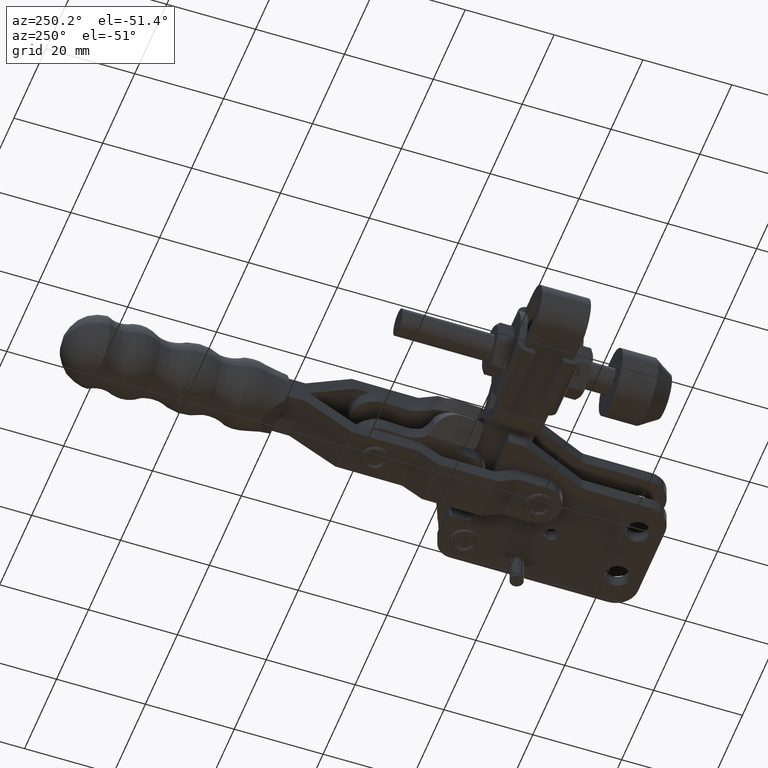
[diagram: clean part render]
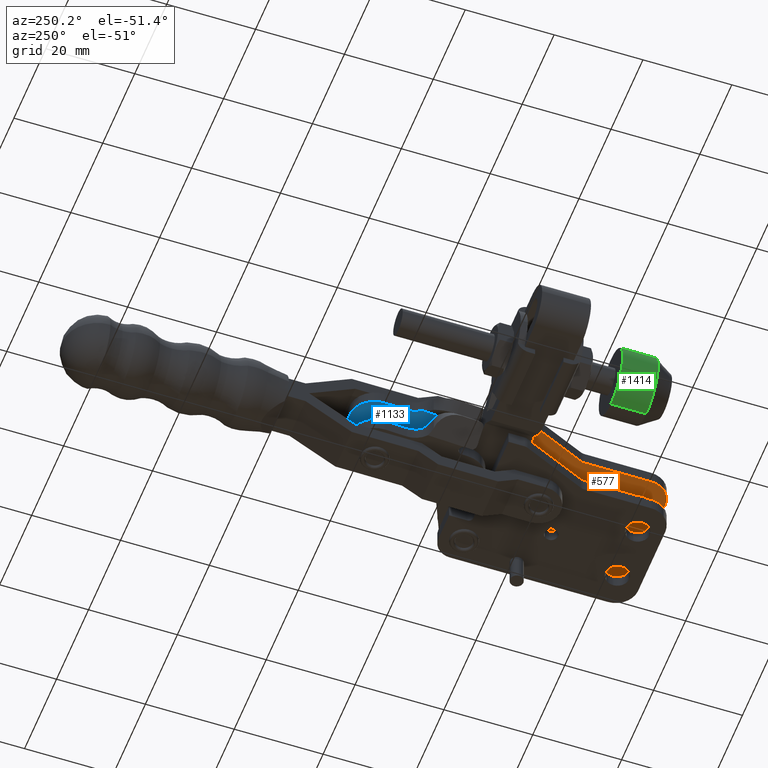
[diagram: same view with three faces highlighted in distinct colors, each labeled with its STEP entity id]
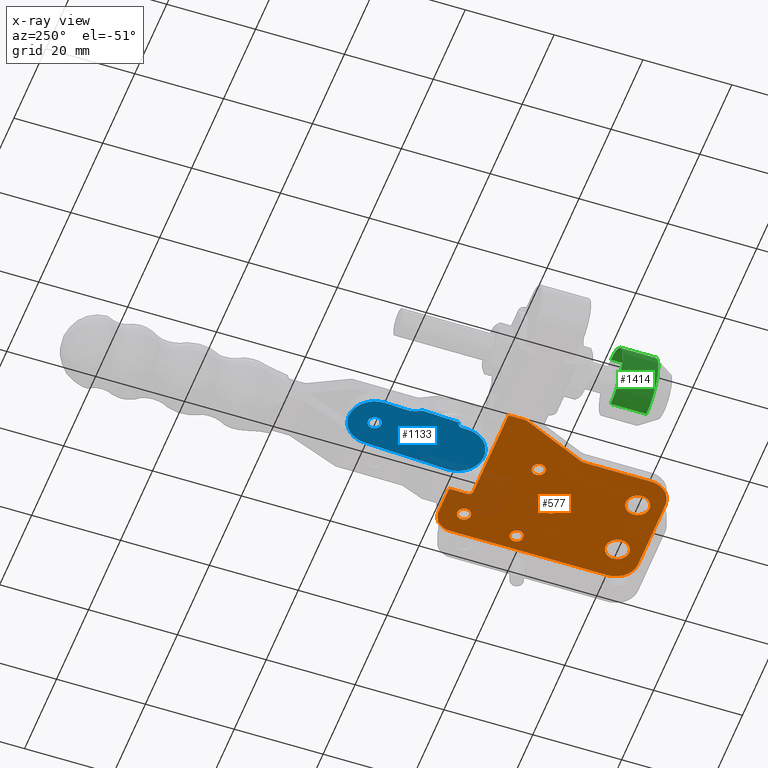
[diagram: x-ray of the same camera — body ghosted, the three highlighted faces saturated]
A machine part, auxiliary view with three faces highlighted in distinct colors.
The next image is the same camera in x-ray (body ghosted, the three faces saturated) — at least one of them is partly hidden behind the body in this view.
Their STEP definitions:

[orange] entity #577 — the highlighted planar face has unit normal (0, 0, 1).
#84 = EDGE_CURVE ( 'NONE', #4448, #1134, #5403, .T. ) ;
#185 = CARTESIAN_POINT ( 'NONE',  ( 35.48124762107060100, 29.39626203524211300, -22.68006977252661800 ) ) ;
#224 = VECTOR ( 'NONE', #10061, 1000.000000000000000 ) ;
#362 = CARTESIAN_POINT ( 'NONE',  ( 25.18104760106653500, 18.39626203524208100, -22.68006977252661800 ) ) ;
#436 = DIRECTION ( 'NONE',  ( 0.0000000000000000000, 0.0000000000000000000, 1.000000000000000000 ) ) ;
#500 = AXIS2_PLACEMENT_3D ( 'NONE', #362, #7080, #2506 ) ;
#577 = ADVANCED_FACE ( 'NONE', ( #3051, #9739, #7444, #1011, #748, #5103, #2760 ), #6734, .F. ) ;
#663 = DIRECTION ( 'NONE',  ( 1.000000000000000000, 0.0000000000000000000, 0.0000000000000000000 ) ) ;
#727 = CARTESIAN_POINT ( 'NONE',  ( 41.88104760106653400, 29.19626203524208200, -22.68006977252661800 ) ) ;
#748 = FACE_BOUND ( 'NONE', #8327, .T. ) ;
#774 = CARTESIAN_POINT ( 'NONE',  ( 34.08104760106652300, 12.39626203524207800, -22.68006977252661800 ) ) ;
#832 = DIRECTION ( 'NONE',  ( 0.0000000000000000000, 0.0000000000000000000, 1.000000000000000000 ) ) ;
#837 = CIRCLE ( 'NONE', #500, 1.500000000000001300 ) ;
#906 = DIRECTION ( 'NONE',  ( 0.0000000000000000000, -0.0000000000000000000, -1.000000000000000000 ) ) ;
#941 = AXIS2_PLACEMENT_3D ( 'NONE', #1461, #7289, #10169 ) ;
#948 = LINE ( 'NONE', #2765, #5034 ) ;
#987 = EDGE_CURVE ( 'NONE', #1105, #7743, #7834, .T. ) ;
#1011 = FACE_BOUND ( 'NONE', #7187, .T. ) ;
#1025 = VERTEX_POINT ( 'NONE', #3247 ) ;
#1095 = EDGE_CURVE ( 'NONE', #7221, #6888, #3857, .T. ) ;
#1105 = VERTEX_POINT ( 'NONE', #1876 ) ;
#1134 = VERTEX_POINT ( 'NONE', #3407 ) ;
#1148 = AXIS2_PLACEMENT_3D ( 'NONE', #4178, #7685, #2143 ) ;
#1176 = CARTESIAN_POINT ( 'NONE',  ( 43.18104760106650300, 34.49626203524209700, -22.68006977252661800 ) ) ;
#1235 = VERTEX_POINT ( 'NONE', #1384 ) ;
#1384 = CARTESIAN_POINT ( 'NONE',  ( 47.18104760106652400, -5.103737964757906200, -22.68006977252661800 ) ) ;
#1386 = CARTESIAN_POINT ( 'NONE',  ( 43.68104760106652400, 16.69626203524207900, -22.68006977252661800 ) ) ;
#1446 = ORIENTED_EDGE ( 'NONE', *, *, #2136, .F. ) ;
#1461 = CARTESIAN_POINT ( 'NONE',  ( 15.48104760106652100, 25.82142790405146100, -22.68006977252661800 ) ) ;
#1672 = VECTOR ( 'NONE', #6417, 1000.000000000000100 ) ;
#1699 = EDGE_CURVE ( 'NONE', #3823, #8761, #9423, .T. ) ;
#1716 = CARTESIAN_POINT ( 'NONE',  ( 13.65395668578131500, 25.00795461789987700, -22.68006977252661800 ) ) ;
#1731 = VERTEX_POINT ( 'NONE', #8072 ) ;
#1824 = CARTESIAN_POINT ( 'NONE',  ( 32.58104760106652300, 12.39626203524207800, -22.68006977252661800 ) ) ;
#1876 = CARTESIAN_POINT ( 'NONE',  ( 26.68104760106653500, 18.39626203524208100, -22.68006977252661800 ) ) ;
#1922 = ORIENTED_EDGE ( 'NONE', *, *, #3215, .T. ) ;
#2021 = DIRECTION ( 'NONE',  ( -1.000000000000000000, 0.0000000000000000000, 0.0000000000000000000 ) ) ;
#2048 = ORIENTED_EDGE ( 'NONE', *, *, #7522, .T. ) ;
#2094 = VECTOR ( 'NONE', #2647, 1000.000000000000000 ) ;
#2136 = EDGE_CURVE ( 'NONE', #10880, #2958, #2564, .T. ) ;
#2143 = DIRECTION ( 'NONE',  ( 1.000000000000000000, 0.0000000000000000000, 0.0000000000000000000 ) ) ;
#2166 = DIRECTION ( 'NONE',  ( 0.0000000000000000000, 0.0000000000000000000, 1.000000000000000000 ) ) ;
#2173 = VERTEX_POINT ( 'NONE', #10477 ) ;
#2175 = AXIS2_PLACEMENT_3D ( 'NONE', #5553, #6753, #2811 ) ;
#2280 = ORIENTED_EDGE ( 'NONE', *, *, #8573, .T. ) ;
#2305 = AXIS2_PLACEMENT_3D ( 'NONE', #1386, #2698, #7005 ) ;
#2306 = ORIENTED_EDGE ( 'NONE', *, *, #3861, .F. ) ;
#2311 = DIRECTION ( 'NONE',  ( 0.0000000000000000000, 0.0000000000000000000, 1.000000000000000000 ) ) ;
#2347 = CIRCLE ( 'NONE', #941, 1.999999999999988000 ) ;
#2382 = CARTESIAN_POINT ( 'NONE',  ( 25.18104760106643500, -10.10373796475791200, -22.68006977252661800 ) ) ;
#2422 = CIRCLE ( 'NONE', #2939, 2.649999999999999500 ) ;
#2445 = EDGE_CURVE ( 'NONE', #4194, #3420, #9802, .T. ) ;
#2478 = EDGE_CURVE ( 'NONE', #2173, #1235, #5711, .T. ) ;
#2506 = DIRECTION ( 'NONE',  ( 1.000000000000000000, 0.0000000000000000000, 0.0000000000000000000 ) ) ;
#2512 = DIRECTION ( 'NONE',  ( 6.688605832388951300E-015, -1.000000000000000000, 0.0000000000000000000 ) ) ;
#2523 = DIRECTION ( 'NONE',  ( 0.0000000000000000000, 0.0000000000000000000, 1.000000000000000000 ) ) ;
#2564 = LINE ( 'NONE', #10171, #4906 ) ;
#2567 = ORIENTED_EDGE ( 'NONE', *, *, #2478, .F. ) ;
#2621 = CIRCLE ( 'NONE', #7250, 2.649999999999999500 ) ;
#2647 = DIRECTION ( 'NONE',  ( -1.000000000000000000, -2.569179678030276000E-015, 0.0000000000000000000 ) ) ;
#2698 = DIRECTION ( 'NONE',  ( 0.0000000000000000000, 0.0000000000000000000, 1.000000000000000000 ) ) ;
#2702 = CARTESIAN_POINT ( 'NONE',  ( 36.48024752105054300, 30.49626203524207600, -22.68006977252661800 ) ) ;
#2760 = FACE_BOUND ( 'NONE', #10382, .T. ) ;
#2765 = CARTESIAN_POINT ( 'NONE',  ( 42.18104760106653100, -10.10373796475791200, -22.68006977252661800 ) ) ;
#2791 = EDGE_CURVE ( 'NONE', #1025, #9791, #5541, .T. ) ;
#2811 = DIRECTION ( 'NONE',  ( 1.000000000000000000, 0.0000000000000000000, 0.0000000000000000000 ) ) ;
#2826 = DIRECTION ( 'NONE',  ( -1.000000000000000000, 0.0000000000000000000, 0.0000000000000000000 ) ) ;
#2835 = VERTEX_POINT ( 'NONE', #1716 ) ;
#2844 = DIRECTION ( 'NONE',  ( 1.000000000000000000, 0.0000000000000000000, 0.0000000000000000000 ) ) ;
#2939 = AXIS2_PLACEMENT_3D ( 'NONE', #6056, #2523, #2844 ) ;
#2958 = VERTEX_POINT ( 'NONE', #3791 ) ;
#2961 = EDGE_CURVE ( 'NONE', #1731, #5000, #9479, .T. ) ;
#3019 = DIRECTION ( 'NONE',  ( -1.000000000000000000, 0.0000000000000000000, 0.0000000000000000000 ) ) ;
#3037 = LINE ( 'NONE', #3467, #7422 ) ;
#3051 = FACE_BOUND ( 'NONE', #8195, .T. ) ;
#3080 = DIRECTION ( 'NONE',  ( 1.000000000000000000, 0.0000000000000000000, 0.0000000000000000000 ) ) ;
#3136 = ORIENTED_EDGE ( 'NONE', *, *, #2445, .T. ) ;
#3172 = ORIENTED_EDGE ( 'NONE', *, *, #987, .T. ) ;
#3191 = DIRECTION ( 'NONE',  ( 1.000000000000000000, 0.0000000000000000000, 0.0000000000000000000 ) ) ;
#3215 = EDGE_CURVE ( 'NONE', #8761, #3823, #6466, .T. ) ;
#3239 = CARTESIAN_POINT ( 'NONE',  ( 25.18104760106653500, 18.39626203524208100, -22.68006977252661800 ) ) ;
#3247 = CARTESIAN_POINT ( 'NONE',  ( 37.23104760106652800, -4.603737964757912400, -22.68006977252661800 ) ) ;
#3248 = AXIS2_PLACEMENT_3D ( 'NONE', #774, #2166, #8735 ) ;
#3386 = ORIENTED_EDGE ( 'NONE', *, *, #3675, .F. ) ;
#3403 = CARTESIAN_POINT ( 'NONE',  ( 20.00813851635163600, 10.73622855836491800, -22.68006977252661800 ) ) ;
#3405 = CARTESIAN_POINT ( 'NONE',  ( 39.88104760106652700, -4.603737964757912400, -22.68006977252661800 ) ) ;
#3407 = CARTESIAN_POINT ( 'NONE',  ( 40.38104760106653400, 29.19626203524208200, -22.68006977252661800 ) ) ;
#3420 = VERTEX_POINT ( 'NONE', #1824 ) ;
#3429 = ORIENTED_EDGE ( 'NONE', *, *, #8444, .F. ) ;
#3467 = CARTESIAN_POINT ( 'NONE',  ( 47.18104760106653100, 30.49626203524204700, -22.68006977252661800 ) ) ;
#3675 = EDGE_CURVE ( 'NONE', #5302, #10416, #10575, .T. ) ;
#3688 = DIRECTION ( 'NONE',  ( 1.000000000000000000, 0.0000000000000000000, 0.0000000000000000000 ) ) ;
#3744 = CARTESIAN_POINT ( 'NONE',  ( 13.48104760106651900, 29.39626203524212000, -22.68006977252662200 ) ) ;
#3766 = AXIS2_PLACEMENT_3D ( 'NONE', #8842, #8559, #9345 ) ;
#3779 = DIRECTION ( 'NONE',  ( 9.746977530644687300E-017, 1.000000000000000000, 0.0000000000000000000 ) ) ;
#3791 = CARTESIAN_POINT ( 'NONE',  ( 13.48104760106653400, 25.82142790405147200, -22.68006977252661800 ) ) ;
#3823 = VERTEX_POINT ( 'NONE', #10435 ) ;
#3838 = DIRECTION ( 'NONE',  ( 0.0000000000000000000, 0.0000000000000000000, 1.000000000000000000 ) ) ;
#3857 = CIRCLE ( 'NONE', #3766, 0.9999999999999662500 ) ;
#3861 = EDGE_CURVE ( 'NONE', #5000, #10209, #5237, .T. ) ;
#3905 = DIRECTION ( 'NONE',  ( 0.0000000000000000000, 0.0000000000000000000, -1.000000000000000000 ) ) ;
#3953 = DIRECTION ( 'NONE',  ( 1.000000000000000000, 1.020234244308859900E-016, 0.0000000000000000000 ) ) ;
#3954 = ORIENTED_EDGE ( 'NONE', *, *, #1699, .T. ) ;
#3971 = EDGE_CURVE ( 'NONE', #8053, #5302, #7133, .T. ) ;
#4017 = LINE ( 'NONE', #4678, #1672 ) ;
#4178 = CARTESIAN_POINT ( 'NONE',  ( 43.18104760106650300, 30.49626203524205400, -22.68006977252661800 ) ) ;
#4192 = EDGE_CURVE ( 'NONE', #2958, #2835, #2347, .T. ) ;
#4194 = VERTEX_POINT ( 'NONE', #5081 ) ;
#4316 = ORIENTED_EDGE ( 'NONE', *, *, #6487, .F. ) ;
#4448 = VERTEX_POINT ( 'NONE', #10862 ) ;
#4464 = ORIENTED_EDGE ( 'NONE', *, *, #8225, .F. ) ;
#4602 = DIRECTION ( 'NONE',  ( 1.000000000000000000, 0.0000000000000000000, 0.0000000000000000000 ) ) ;
#4658 = ORIENTED_EDGE ( 'NONE', *, *, #4192, .F. ) ;
#4678 = CARTESIAN_POINT ( 'NONE',  ( 13.65395668578131500, 25.00795461789987700, -22.68006977252661800 ) ) ;
#4839 = CARTESIAN_POINT ( 'NONE',  ( 35.48124762107060100, 29.39626203524211300, -22.68006977252661800 ) ) ;
#4906 = VECTOR ( 'NONE', #2512, 1000.000000000000000 ) ;
#4956 = EDGE_CURVE ( 'NONE', #9791, #1025, #2621, .T. ) ;
#5000 = VERTEX_POINT ( 'NONE', #10417 ) ;
#5034 = VECTOR ( 'NONE', #3953, 1000.000000000000000 ) ;
#5081 = CARTESIAN_POINT ( 'NONE',  ( 35.58104760106653000, 12.39626203524207800, -22.68006977252661800 ) ) ;
#5103 = FACE_OUTER_BOUND ( 'NONE', #10089, .T. ) ;
#5125 = CARTESIAN_POINT ( 'NONE',  ( 36.48024752105054300, 34.49626203524207600, -22.68006977252662200 ) ) ;
#5169 = ORIENTED_EDGE ( 'NONE', *, *, #84, .F. ) ;
#5237 = CIRCLE ( 'NONE', #8689, 5.000000000000004400 ) ;
#5247 = VECTOR ( 'NONE', #3019, 1000.000000000000000 ) ;
#5263 = AXIS2_PLACEMENT_3D ( 'NONE', #7538, #6555, #663 ) ;
#5302 = VERTEX_POINT ( 'NONE', #1176 ) ;
#5391 = CIRCLE ( 'NONE', #3248, 1.500000000000001300 ) ;
#5402 = CARTESIAN_POINT ( 'NONE',  ( 47.18104760106653100, 30.49626203524204700, -22.68006977252661800 ) ) ;
#5403 = CIRCLE ( 'NONE', #8577, 1.500000000000001300 ) ;
#5511 = CARTESIAN_POINT ( 'NONE',  ( 24.53104760106652500, -4.603737964757912400, -22.68006977252661800 ) ) ;
#5541 = CIRCLE ( 'NONE', #2175, 2.649999999999999500 ) ;
#5553 = CARTESIAN_POINT ( 'NONE',  ( 39.88104760106652700, -4.603737964757912400, -22.68006977252661800 ) ) ;
#5697 = DIRECTION ( 'NONE',  ( 0.0000000000000000000, 0.0000000000000000000, 1.000000000000000000 ) ) ;
#5711 = CIRCLE ( 'NONE', #7889, 5.000000000000004400 ) ;
#5756 = CARTESIAN_POINT ( 'NONE',  ( 27.18104760106652800, -4.603737964757912400, -22.68006977252661800 ) ) ;
#6056 = CARTESIAN_POINT ( 'NONE',  ( 27.18104760106652800, -4.603737964757912400, -22.68006977252661800 ) ) ;
#6096 = ORIENTED_EDGE ( 'NONE', *, *, #10040, .F. ) ;
#6103 = CARTESIAN_POINT ( 'NONE',  ( 18.18104760106643200, 9.922755272213311900, -22.68006977252661800 ) ) ;
#6105 = AXIS2_PLACEMENT_3D ( 'NONE', #8881, #832, #3688 ) ;
#6195 = DIRECTION ( 'NONE',  ( 0.0000000000000000000, 1.000000000000000000, -0.0000000000000000000 ) ) ;
#6359 = CARTESIAN_POINT ( 'NONE',  ( 20.18104760106643200, 9.922755272213311900, -22.68006977252661800 ) ) ;
#6417 = DIRECTION ( 'NONE',  ( 0.4067366430757993200, -0.9135454576426013100, 0.0000000000000000000 ) ) ;
#6466 = CIRCLE ( 'NONE', #5263, 1.500000000000001300 ) ;
#6487 = EDGE_CURVE ( 'NONE', #10209, #2173, #948, .T. ) ;
#6533 = ORIENTED_EDGE ( 'NONE', *, *, #10423, .F. ) ;
#6555 = DIRECTION ( 'NONE',  ( 0.0000000000000000000, 0.0000000000000000000, 1.000000000000000000 ) ) ;
#6579 = DIRECTION ( 'NONE',  ( 0.0000000000000000000, 0.0000000000000000000, 1.000000000000000000 ) ) ;
#6734 = PLANE ( 'NONE',  #6770 ) ;
#6736 = CARTESIAN_POINT ( 'NONE',  ( 36.48104760106655700, 30.41626203524205300, -22.68006977252661800 ) ) ;
#6753 = DIRECTION ( 'NONE',  ( 0.0000000000000000000, 0.0000000000000000000, 1.000000000000000000 ) ) ;
#6770 = AXIS2_PLACEMENT_3D ( 'NONE', #11301, #6579, #9335 ) ;
#6840 = AXIS2_PLACEMENT_3D ( 'NONE', #727, #3905, #2021 ) ;
#6842 = CARTESIAN_POINT ( 'NONE',  ( 40.48024752105052900, 30.49626203524207600, -22.68006977252661800 ) ) ;
#6850 = EDGE_CURVE ( 'NONE', #8612, #7158, #2422, .T. ) ;
#6888 = VERTEX_POINT ( 'NONE', #4839 ) ;
#6902 = ORIENTED_EDGE ( 'NONE', *, *, #6850, .T. ) ;
#7005 = DIRECTION ( 'NONE',  ( 1.000000000000000000, 0.0000000000000000000, 0.0000000000000000000 ) ) ;
#7008 = DIRECTION ( 'NONE',  ( 1.000000000000000000, 0.0000000000000000000, 0.0000000000000000000 ) ) ;
#7080 = DIRECTION ( 'NONE',  ( 0.0000000000000000000, 0.0000000000000000000, 1.000000000000000000 ) ) ;
#7133 = CIRCLE ( 'NONE', #1148, 4.000000000000031100 ) ;
#7158 = VERTEX_POINT ( 'NONE', #5511 ) ;
#7159 = VECTOR ( 'NONE', #6195, 1000.000000000000000 ) ;
#7187 = EDGE_LOOP ( 'NONE', ( #3954, #1922 ) ) ;
#7212 = EDGE_LOOP ( 'NONE', ( #3136, #2048 ) ) ;
#7221 = VERTEX_POINT ( 'NONE', #6736 ) ;
#7250 = AXIS2_PLACEMENT_3D ( 'NONE', #3405, #7619, #7991 ) ;
#7289 = DIRECTION ( 'NONE',  ( 0.0000000000000000000, 0.0000000000000000000, 1.000000000000000000 ) ) ;
#7422 = VECTOR ( 'NONE', #3779, 1000.000000000000000 ) ;
#7444 = FACE_BOUND ( 'NONE', #7212, .T. ) ;
#7450 = AXIS2_PLACEMENT_3D ( 'NONE', #5756, #9913, #9303 ) ;
#7491 = VERTEX_POINT ( 'NONE', #3403 ) ;
#7522 = EDGE_CURVE ( 'NONE', #3420, #4194, #5391, .T. ) ;
#7538 = CARTESIAN_POINT ( 'NONE',  ( 43.68104760106652400, 16.69626203524207900, -22.68006977252661800 ) ) ;
#7579 = CIRCLE ( 'NONE', #7450, 2.649999999999999500 ) ;
#7589 = LINE ( 'NONE', #185, #5247 ) ;
#7610 = EDGE_CURVE ( 'NONE', #8159, #10416, #9469, .T. ) ;
#7619 = DIRECTION ( 'NONE',  ( 0.0000000000000000000, 0.0000000000000000000, 1.000000000000000000 ) ) ;
#7685 = DIRECTION ( 'NONE',  ( 0.0000000000000000000, 0.0000000000000000000, 1.000000000000000000 ) ) ;
#7743 = VERTEX_POINT ( 'NONE', #10316 ) ;
#7763 = CARTESIAN_POINT ( 'NONE',  ( 36.48024752105054300, 34.49626203524207600, -22.68006977252661800 ) ) ;
#7784 = ORIENTED_EDGE ( 'NONE', *, *, #11095, .F. ) ;
#7787 = ORIENTED_EDGE ( 'NONE', *, *, #4956, .T. ) ;
#7834 = CIRCLE ( 'NONE', #8091, 1.500000000000001300 ) ;
#7889 = AXIS2_PLACEMENT_3D ( 'NONE', #10840, #5697, #8959 ) ;
#7991 = DIRECTION ( 'NONE',  ( 1.000000000000000000, 0.0000000000000000000, 0.0000000000000000000 ) ) ;
#8053 = VERTEX_POINT ( 'NONE', #5402 ) ;
#8072 = CARTESIAN_POINT ( 'NONE',  ( 20.18104760106643200, 9.922755272213311900, -22.68006977252661800 ) ) ;
#8091 = AXIS2_PLACEMENT_3D ( 'NONE', #3239, #3838, #3080 ) ;
#8159 = VERTEX_POINT ( 'NONE', #2702 ) ;
#8195 = EDGE_LOOP ( 'NONE', ( #6902, #2280 ) ) ;
#8225 = EDGE_CURVE ( 'NONE', #6888, #10880, #7589, .T. ) ;
#8226 = EDGE_LOOP ( 'NONE', ( #7787, #9509 ) ) ;
#8327 = EDGE_LOOP ( 'NONE', ( #3172, #11306 ) ) ;
#8396 = ORIENTED_EDGE ( 'NONE', *, *, #1095, .F. ) ;
#8420 = ORIENTED_EDGE ( 'NONE', *, *, #3971, .F. ) ;
#8444 = EDGE_CURVE ( 'NONE', #2835, #7491, #4017, .T. ) ;
#8544 = CARTESIAN_POINT ( 'NONE',  ( 43.18104760106650300, 34.49626203524209700, -22.68006977252661800 ) ) ;
#8559 = DIRECTION ( 'NONE',  ( 0.0000000000000000000, -0.0000000000000000000, -1.000000000000000000 ) ) ;
#8573 = EDGE_CURVE ( 'NONE', #7158, #8612, #7579, .T. ) ;
#8577 = AXIS2_PLACEMENT_3D ( 'NONE', #9051, #11221, #2826 ) ;
#8583 = EDGE_CURVE ( 'NONE', #1134, #4448, #9878, .T. ) ;
#8612 = VERTEX_POINT ( 'NONE', #9907 ) ;
#8641 = CARTESIAN_POINT ( 'NONE',  ( 42.18104760106652400, 16.69626203524207900, -22.68006977252661800 ) ) ;
#8689 = AXIS2_PLACEMENT_3D ( 'NONE', #10936, #2311, #4602 ) ;
#8735 = DIRECTION ( 'NONE',  ( 1.000000000000000000, 0.0000000000000000000, 0.0000000000000000000 ) ) ;
#8761 = VERTEX_POINT ( 'NONE', #8641 ) ;
#8842 = CARTESIAN_POINT ( 'NONE',  ( 35.48124762107060100, 30.39626203524212000, -22.68006977252661800 ) ) ;
#8881 = CARTESIAN_POINT ( 'NONE',  ( 34.08104760106652300, 12.39626203524207800, -22.68006977252661800 ) ) ;
#8926 = ORIENTED_EDGE ( 'NONE', *, *, #7610, .T. ) ;
#8959 = DIRECTION ( 'NONE',  ( 1.000000000000000000, 0.0000000000000000000, 0.0000000000000000000 ) ) ;
#9051 = CARTESIAN_POINT ( 'NONE',  ( 41.88104760106653400, 29.19626203524208200, -22.68006977252661800 ) ) ;
#9303 = DIRECTION ( 'NONE',  ( 1.000000000000000000, 0.0000000000000000000, 0.0000000000000000000 ) ) ;
#9329 = AXIS2_PLACEMENT_3D ( 'NONE', #6842, #436, #3191 ) ;
#9335 = DIRECTION ( 'NONE',  ( 1.000000000000000000, 0.0000000000000000000, 0.0000000000000000000 ) ) ;
#9345 = DIRECTION ( 'NONE',  ( 1.000000000000000000, 0.0000000000000000000, 0.0000000000000000000 ) ) ;
#9421 = CIRCLE ( 'NONE', #11026, 2.000000000000001800 ) ;
#9423 = CIRCLE ( 'NONE', #2305, 1.500000000000001300 ) ;
#9469 = LINE ( 'NONE', #7763, #7159 ) ;
#9479 = LINE ( 'NONE', #6359, #224 ) ;
#9509 = ORIENTED_EDGE ( 'NONE', *, *, #2791, .T. ) ;
#9739 = FACE_BOUND ( 'NONE', #8226, .T. ) ;
#9791 = VERTEX_POINT ( 'NONE', #11278 ) ;
#9802 = CIRCLE ( 'NONE', #6105, 1.500000000000001300 ) ;
#9878 = CIRCLE ( 'NONE', #6840, 1.500000000000001300 ) ;
#9907 = CARTESIAN_POINT ( 'NONE',  ( 29.83104760106652600, -4.603737964757912400, -22.68006977252661800 ) ) ;
#9908 = ORIENTED_EDGE ( 'NONE', *, *, #8583, .F. ) ;
#9913 = DIRECTION ( 'NONE',  ( 0.0000000000000000000, 0.0000000000000000000, 1.000000000000000000 ) ) ;
#10040 = EDGE_CURVE ( 'NONE', #1235, #8053, #3037, .T. ) ;
#10061 = DIRECTION ( 'NONE',  ( -5.421010862427523400E-020, -1.000000000000000000, 0.0000000000000000000 ) ) ;
#10089 = EDGE_LOOP ( 'NONE', ( #6533, #8926, #3386, #8420, #6096, #2567, #4316, #2306, #10520, #7784, #3429, #4658, #1446, #4464, #8396 ) ) ;
#10169 = DIRECTION ( 'NONE',  ( 1.000000000000000000, 0.0000000000000000000, 0.0000000000000000000 ) ) ;
#10171 = CARTESIAN_POINT ( 'NONE',  ( 13.48104760106651900, 27.89626203524212000, -22.68006977252661800 ) ) ;
#10209 = VERTEX_POINT ( 'NONE', #2382 ) ;
#10316 = CARTESIAN_POINT ( 'NONE',  ( 23.68104760106653500, 18.39626203524208100, -22.68006977252661800 ) ) ;
#10382 = EDGE_LOOP ( 'NONE', ( #5169, #9908 ) ) ;
#10416 = VERTEX_POINT ( 'NONE', #5125 ) ;
#10417 = CARTESIAN_POINT ( 'NONE',  ( 20.18104760106643200, -5.103737964757908900, -22.68006977252661800 ) ) ;
#10423 = EDGE_CURVE ( 'NONE', #8159, #7221, #11233, .T. ) ;
#10435 = CARTESIAN_POINT ( 'NONE',  ( 45.18104760106652400, 16.69626203524207900, -22.68006977252661800 ) ) ;
#10477 = CARTESIAN_POINT ( 'NONE',  ( 42.18104760106652400, -10.10373796475791000, -22.68006977252661800 ) ) ;
#10520 = ORIENTED_EDGE ( 'NONE', *, *, #2961, .F. ) ;
#10575 = LINE ( 'NONE', #8544, #2094 ) ;
#10838 = EDGE_CURVE ( 'NONE', #7743, #1105, #837, .T. ) ;
#10840 = CARTESIAN_POINT ( 'NONE',  ( 42.18104760106653100, -5.103737964757907100, -22.68006977252661800 ) ) ;
#10862 = CARTESIAN_POINT ( 'NONE',  ( 43.38104760106653400, 29.19626203524208200, -22.68006977252661800 ) ) ;
#10880 = VERTEX_POINT ( 'NONE', #3744 ) ;
#10936 = CARTESIAN_POINT ( 'NONE',  ( 25.18104760106643900, -5.103737964757909800, -22.68006977252661800 ) ) ;
#11026 = AXIS2_PLACEMENT_3D ( 'NONE', #6103, #906, #7008 ) ;
#11095 = EDGE_CURVE ( 'NONE', #7491, #1731, #9421, .T. ) ;
#11221 = DIRECTION ( 'NONE',  ( 0.0000000000000000000, 0.0000000000000000000, -1.000000000000000000 ) ) ;
#11233 = CIRCLE ( 'NONE', #9329, 3.999999999999996400 ) ;
#11278 = CARTESIAN_POINT ( 'NONE',  ( 42.53104760106652500, -4.603737964757912400, -22.68006977252661800 ) ) ;
#11301 = CARTESIAN_POINT ( 'NONE',  ( 40.48024752105052900, 30.49626203524207600, -22.68006977252661800 ) ) ;
#11306 = ORIENTED_EDGE ( 'NONE', *, *, #10838, .T. ) ;

[blue] entity #1133 — the highlighted planar face has unit normal (0, -0, 1).
#148 = ORIENTED_EDGE ( 'NONE', *, *, #2221, .T. ) ;
#176 = AXIS2_PLACEMENT_3D ( 'NONE', #1721, #6460, #7908 ) ;
#359 = PLANE ( 'NONE',  #7287 ) ;
#476 = LINE ( 'NONE', #2626, #9745 ) ;
#601 = CIRCLE ( 'NONE', #1998, 1.500000000000001300 ) ;
#846 = CIRCLE ( 'NONE', #176, 5.799999999999806200 ) ;
#922 = ORIENTED_EDGE ( 'NONE', *, *, #7585, .T. ) ;
#944 = LINE ( 'NONE', #4682, #9954 ) ;
#1124 = VECTOR ( 'NONE', #5952, 1000.000000000000100 ) ;
#1133 = ADVANCED_FACE ( 'NONE', ( #1526, #1253 ), #359, .F. ) ;
#1242 = ORIENTED_EDGE ( 'NONE', *, *, #4859, .T. ) ;
#1253 = FACE_OUTER_BOUND ( 'NONE', #4619, .T. ) ;
#1286 = CARTESIAN_POINT ( 'NONE',  ( 24.99678088921913500, 55.39580319157141700, -22.68006977252642600 ) ) ;
#1394 = DIRECTION ( 'NONE',  ( -5.171680821409795700E-017, 2.528320300630973700E-016, -1.000000000000000000 ) ) ;
#1496 = VERTEX_POINT ( 'NONE', #8643 ) ;
#1526 = FACE_BOUND ( 'NONE', #3286, .T. ) ;
#1570 = CARTESIAN_POINT ( 'NONE',  ( 25.88104760106633900, 36.29626203524198000, -22.68006977252643000 ) ) ;
#1721 = CARTESIAN_POINT ( 'NONE',  ( 25.88104760106633900, 36.29626203524198000, -22.68006977252643000 ) ) ;
#1998 = AXIS2_PLACEMENT_3D ( 'NONE', #1286, #4490, #6486 ) ;
#2005 = VERTEX_POINT ( 'NONE', #3275 ) ;
#2132 = DIRECTION ( 'NONE',  ( -0.04624825898782356600, 0.9989299767954685800, 0.0000000000000000000 ) ) ;
#2159 = CARTESIAN_POINT ( 'NONE',  ( 26.14928750319570800, 30.50246816982845400, -22.68006977252643000 ) ) ;
#2221 = EDGE_CURVE ( 'NONE', #6502, #8441, #944, .T. ) ;
#2297 = ORIENTED_EDGE ( 'NONE', *, *, #5535, .T. ) ;
#2362 = CARTESIAN_POINT ( 'NONE',  ( 26.49678088921913900, 55.39580319157141700, -22.68006977252642600 ) ) ;
#2426 = VERTEX_POINT ( 'NONE', #2159 ) ;
#2521 = DIRECTION ( 'NONE',  ( 5.171680821409876400E-017, -2.528320300631149700E-016, 1.000000000000000000 ) ) ;
#2626 = CARTESIAN_POINT ( 'NONE',  ( 18.93474712167625300, 60.92135715485598300, -22.68006977252642600 ) ) ;
#2674 = ORIENTED_EDGE ( 'NONE', *, *, #7262, .F. ) ;
#3091 = AXIS2_PLACEMENT_3D ( 'NONE', #9430, #4196, #10281 ) ;
#3108 = CARTESIAN_POINT ( 'NONE',  ( 30.52233485250325600, 61.45783695911465100, -22.68006977252642600 ) ) ;
#3175 = CIRCLE ( 'NONE', #8758, 5.799999999999806200 ) ;
#3182 = LINE ( 'NONE', #9514, #1124 ) ;
#3194 = DIRECTION ( 'NONE',  ( 5.171680821409795700E-017, -2.528320300630973700E-016, 1.000000000000000000 ) ) ;
#3275 = CARTESIAN_POINT ( 'NONE',  ( 18.86841711011594200, 38.56935978855939600, -22.68006977252643000 ) ) ;
#3286 = EDGE_LOOP ( 'NONE', ( #6420, #2674 ) ) ;
#3419 = VERTEX_POINT ( 'NONE', #7948 ) ;
#3664 = DIRECTION ( 'NONE',  ( -0.04624825898782473900, 0.9989299767954684700, 0.0000000000000000000 ) ) ;
#3668 = DIRECTION ( 'NONE',  ( -5.171680821409795700E-017, 2.528320300630973700E-016, -1.000000000000000000 ) ) ;
#3724 = VERTEX_POINT ( 'NONE', #2362 ) ;
#3810 = ORIENTED_EDGE ( 'NONE', *, *, #8003, .T. ) ;
#4023 = DIRECTION ( 'NONE',  ( 5.171680821409795700E-017, -2.528320300630973700E-016, 1.000000000000000000 ) ) ;
#4071 = VERTEX_POINT ( 'NONE', #4911 ) ;
#4132 = EDGE_CURVE ( 'NONE', #2426, #3419, #3175, .T. ) ;
#4151 = CARTESIAN_POINT ( 'NONE',  ( 31.67484146647985100, 36.56450193737141800, -22.68006977252643400 ) ) ;
#4196 = DIRECTION ( 'NONE',  ( -5.171680821409795700E-017, 2.528320300630973700E-016, -1.000000000000000000 ) ) ;
#4314 = VERTEX_POINT ( 'NONE', #7539 ) ;
#4450 = CARTESIAN_POINT ( 'NONE',  ( 18.47733651386753800, 47.01642654275678300, -22.68006977252643000 ) ) ;
#4490 = DIRECTION ( 'NONE',  ( -5.171680821409795700E-017, 2.528320300630973700E-016, -1.000000000000000000 ) ) ;
#4492 = DIRECTION ( 'NONE',  ( -0.04624825898782379500, 0.9989299767954685800, 0.0000000000000000000 ) ) ;
#4619 = EDGE_LOOP ( 'NONE', ( #3810, #922, #7922, #148, #2297, #9036, #1242, #9375, #7370 ) ) ;
#4682 = CARTESIAN_POINT ( 'NONE',  ( 30.52233485250325600, 61.45783695911465100, -22.68006977252642600 ) ) ;
#4859 = EDGE_CURVE ( 'NONE', #3419, #1496, #3182, .T. ) ;
#4911 = CARTESIAN_POINT ( 'NONE',  ( 19.20298702380563000, 55.12756328944205800, -22.68006977252642600 ) ) ;
#5420 = AXIS2_PLACEMENT_3D ( 'NONE', #7108, #4023, #3664 ) ;
#5535 = EDGE_CURVE ( 'NONE', #8441, #2426, #846, .T. ) ;
#5599 = EDGE_CURVE ( 'NONE', #1496, #2005, #8209, .T. ) ;
#5651 = DIRECTION ( 'NONE',  ( -0.04624825898782378200, 0.9989299767954683600, 2.549533062644078800E-016 ) ) ;
#5739 = AXIS2_PLACEMENT_3D ( 'NONE', #10081, #3194, #4492 ) ;
#5952 = DIRECTION ( 'NONE',  ( -0.04624825898782378200, 0.9989299767954683600, 2.549533062644078800E-016 ) ) ;
#5963 = LINE ( 'NONE', #9243, #8032 ) ;
#6094 = AXIS2_PLACEMENT_3D ( 'NONE', #8905, #3668, #9781 ) ;
#6253 = CIRCLE ( 'NONE', #6094, 5.799999999999806200 ) ;
#6420 = ORIENTED_EDGE ( 'NONE', *, *, #8088, .F. ) ;
#6460 = DIRECTION ( 'NONE',  ( -5.171680821409795700E-017, 2.528320300630973700E-016, -1.000000000000000000 ) ) ;
#6486 = DIRECTION ( 'NONE',  ( 0.0000000000000000000, -1.000000000000000000, 0.0000000000000000000 ) ) ;
#6502 = VERTEX_POINT ( 'NONE', #10307 ) ;
#6948 = EDGE_CURVE ( 'NONE', #10501, #2005, #5963, .T. ) ;
#7108 = CARTESIAN_POINT ( 'NONE',  ( 19.01432654447692600, 37.58006183699758700, -22.68006977252643400 ) ) ;
#7262 = EDGE_CURVE ( 'NONE', #4314, #3724, #10597, .T. ) ;
#7287 = AXIS2_PLACEMENT_3D ( 'NONE', #3108, #2521, #7337 ) ;
#7337 = DIRECTION ( 'NONE',  ( -0.04624825898782379500, 0.9989299767954684700, 2.549533062644078800E-016 ) ) ;
#7370 = ORIENTED_EDGE ( 'NONE', *, *, #6948, .F. ) ;
#7539 = CARTESIAN_POINT ( 'NONE',  ( 23.49678088921913500, 55.39580319157141700, -22.68006977252642600 ) ) ;
#7585 = EDGE_CURVE ( 'NONE', #9428, #4071, #476, .T. ) ;
#7908 = DIRECTION ( 'NONE',  ( -0.04624825898782356600, 0.9989299767954685800, 0.0000000000000000000 ) ) ;
#7922 = ORIENTED_EDGE ( 'NONE', *, *, #11238, .T. ) ;
#7948 = CARTESIAN_POINT ( 'NONE',  ( 20.08725373565283700, 36.02802213311267100, -22.68006977252643000 ) ) ;
#8003 = EDGE_CURVE ( 'NONE', #10501, #9428, #8917, .T. ) ;
#8032 = VECTOR ( 'NONE', #9583, 1000.000000000000100 ) ;
#8088 = EDGE_CURVE ( 'NONE', #3724, #4314, #601, .T. ) ;
#8209 = CIRCLE ( 'NONE', #5420, 0.9999999999998868700 ) ;
#8441 = VERTEX_POINT ( 'NONE', #4151 ) ;
#8643 = CARTESIAN_POINT ( 'NONE',  ( 20.01325652127231100, 37.62631009598549500, -22.68006977252643400 ) ) ;
#8758 = AXIS2_PLACEMENT_3D ( 'NONE', #1570, #1394, #2132 ) ;
#8905 = CARTESIAN_POINT ( 'NONE',  ( 24.99678088921913500, 55.39580319157141700, -22.68006977252642600 ) ) ;
#8917 = CIRCLE ( 'NONE', #5739, 4.999999999999948500 ) ;
#9036 = ORIENTED_EDGE ( 'NONE', *, *, #4132, .T. ) ;
#9243 = CARTESIAN_POINT ( 'NONE',  ( 17.83592414720079600, 60.87048406996933600, -22.68006977252642600 ) ) ;
#9375 = ORIENTED_EDGE ( 'NONE', *, *, #5599, .T. ) ;
#9428 = VERTEX_POINT ( 'NONE', #10582 ) ;
#9430 = CARTESIAN_POINT ( 'NONE',  ( 24.99678088921913500, 55.39580319157141700, -22.68006977252642600 ) ) ;
#9514 = CARTESIAN_POINT ( 'NONE',  ( 18.93474712167625300, 60.92135715485598300, -22.68006977252642600 ) ) ;
#9583 = DIRECTION ( 'NONE',  ( 0.04624825898782378200, -0.9989299767954683600, -2.549533062644078800E-016 ) ) ;
#9588 = DIRECTION ( 'NONE',  ( 0.04624825898782378200, -0.9989299767954683600, -2.549533062644078800E-016 ) ) ;
#9745 = VECTOR ( 'NONE', #5651, 1000.000000000000100 ) ;
#9781 = DIRECTION ( 'NONE',  ( -0.04624825898782356600, 0.9989299767954685800, 0.0000000000000000000 ) ) ;
#9954 = VECTOR ( 'NONE', #9588, 1000.000000000000100 ) ;
#10081 = CARTESIAN_POINT ( 'NONE',  ( 14.43680353922818900, 49.96160790913334200, -22.68006977252643000 ) ) ;
#10281 = DIRECTION ( 'NONE',  ( 0.0000000000000000000, -1.000000000000000000, 0.0000000000000000000 ) ) ;
#10307 = CARTESIAN_POINT ( 'NONE',  ( 30.79057475463265400, 55.66404309370080500, -22.68006977252642600 ) ) ;
#10501 = VERTEX_POINT ( 'NONE', #4450 ) ;
#10582 = CARTESIAN_POINT ( 'NONE',  ( 19.43145342320549300, 50.19284920407248100, -22.68006977252643000 ) ) ;
#10597 = CIRCLE ( 'NONE', #3091, 1.500000000000001300 ) ;
#11238 = EDGE_CURVE ( 'NONE', #4071, #6502, #6253, .T. ) ;

[green] entity #1414 — the highlighted cylindrical surface (edge-blend (fillet) strip) has radius 7.5 mm, axis along (0, 1, 0).
#259 = EDGE_CURVE ( 'NONE', #1983, #6104, #6765, .T. ) ;
#781 = AXIS2_PLACEMENT_3D ( 'NONE', #2247, #9425, #5106 ) ;
#980 = EDGE_CURVE ( 'NONE', #8337, #9127, #3444, .T. ) ;
#1414 = ADVANCED_FACE ( 'NONE', ( #3425 ), #3153, .T. ) ;
#1499 = CARTESIAN_POINT ( 'NONE',  ( -4.634466110012502900, 12.90626203523284800, -25.68006977252681700 ) ) ;
#1792 = DIRECTION ( 'NONE',  ( -0.0000000000000000000, 1.000000000000000000, -0.0000000000000000000 ) ) ;
#1983 = VERTEX_POINT ( 'NONE', #5347 ) ;
#2030 = EDGE_LOOP ( 'NONE', ( #6348, #5603, #9784, #5170 ) ) ;
#2247 = CARTESIAN_POINT ( 'NONE',  ( -4.634466110012502900, 14.25132599283862700, -25.68006977252681700 ) ) ;
#2630 = LINE ( 'NONE', #5089, #9069 ) ;
#2645 = EDGE_CURVE ( 'NONE', #1983, #8337, #5406, .T. ) ;
#3153 = CYLINDRICAL_SURFACE ( 'NONE', #781, 7.499999999999829500 ) ;
#3349 = VECTOR ( 'NONE', #6968, 1000.000000000000000 ) ;
#3425 = FACE_OUTER_BOUND ( 'NONE', #2030, .T. ) ;
#3444 = CIRCLE ( 'NONE', #6909, 7.499999999999816100 ) ;
#4387 = CARTESIAN_POINT ( 'NONE',  ( -4.634466110012502900, 4.906262035233701200, -25.68006977252681700 ) ) ;
#4580 = CARTESIAN_POINT ( 'NONE',  ( -4.634466110012502000, 12.90626203523284800, -33.18006977252663600 ) ) ;
#4584 = DIRECTION ( 'NONE',  ( -0.0000000000000000000, 1.000000000000000000, -0.0000000000000000000 ) ) ;
#5089 = CARTESIAN_POINT ( 'NONE',  ( -4.634466110012502900, 14.25132599283862700, -18.18006977252698800 ) ) ;
#5106 = DIRECTION ( 'NONE',  ( 0.0000000000000000000, 0.0000000000000000000, 1.000000000000000000 ) ) ;
#5170 = ORIENTED_EDGE ( 'NONE', *, *, #980, .F. ) ;
#5347 = CARTESIAN_POINT ( 'NONE',  ( -4.634466110012502000, 4.906262035233701200, -33.18006977252665700 ) ) ;
#5406 = LINE ( 'NONE', #8725, #3349 ) ;
#5603 = ORIENTED_EDGE ( 'NONE', *, *, #259, .T. ) ;
#5890 = DIRECTION ( 'NONE',  ( 0.0000000000000000000, 0.0000000000000000000, 1.000000000000000000 ) ) ;
#6104 = VERTEX_POINT ( 'NONE', #6886 ) ;
#6184 = DIRECTION ( 'NONE',  ( 0.0000000000000000000, 0.0000000000000000000, 1.000000000000000000 ) ) ;
#6348 = ORIENTED_EDGE ( 'NONE', *, *, #2645, .F. ) ;
#6765 = CIRCLE ( 'NONE', #9522, 7.499999999999840100 ) ;
#6886 = CARTESIAN_POINT ( 'NONE',  ( -4.634466110012502900, 4.906262035233701200, -18.18006977252697700 ) ) ;
#6909 = AXIS2_PLACEMENT_3D ( 'NONE', #1499, #1792, #6184 ) ;
#6968 = DIRECTION ( 'NONE',  ( -0.0000000000000000000, 1.000000000000000000, -0.0000000000000000000 ) ) ;
#7306 = CARTESIAN_POINT ( 'NONE',  ( -4.634466110012502900, 12.90626203523284800, -18.18006977252700200 ) ) ;
#7835 = EDGE_CURVE ( 'NONE', #6104, #9127, #2630, .T. ) ;
#8337 = VERTEX_POINT ( 'NONE', #4580 ) ;
#8725 = CARTESIAN_POINT ( 'NONE',  ( -4.634466110012502000, 14.25132599283862700, -33.18006977252664300 ) ) ;
#9069 = VECTOR ( 'NONE', #10743, 1000.000000000000000 ) ;
#9127 = VERTEX_POINT ( 'NONE', #7306 ) ;
#9425 = DIRECTION ( 'NONE',  ( -0.0000000000000000000, 1.000000000000000000, -0.0000000000000000000 ) ) ;
#9522 = AXIS2_PLACEMENT_3D ( 'NONE', #4387, #4584, #5890 ) ;
#9784 = ORIENTED_EDGE ( 'NONE', *, *, #7835, .T. ) ;
#10743 = DIRECTION ( 'NONE',  ( -0.0000000000000000000, 1.000000000000000000, -0.0000000000000000000 ) ) ;